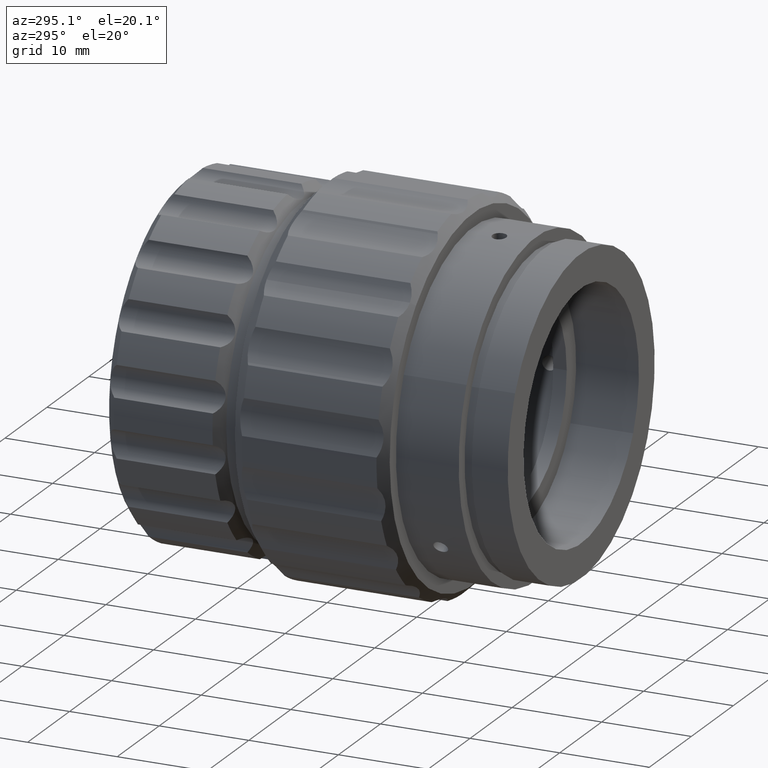
[diagram: clean part render]
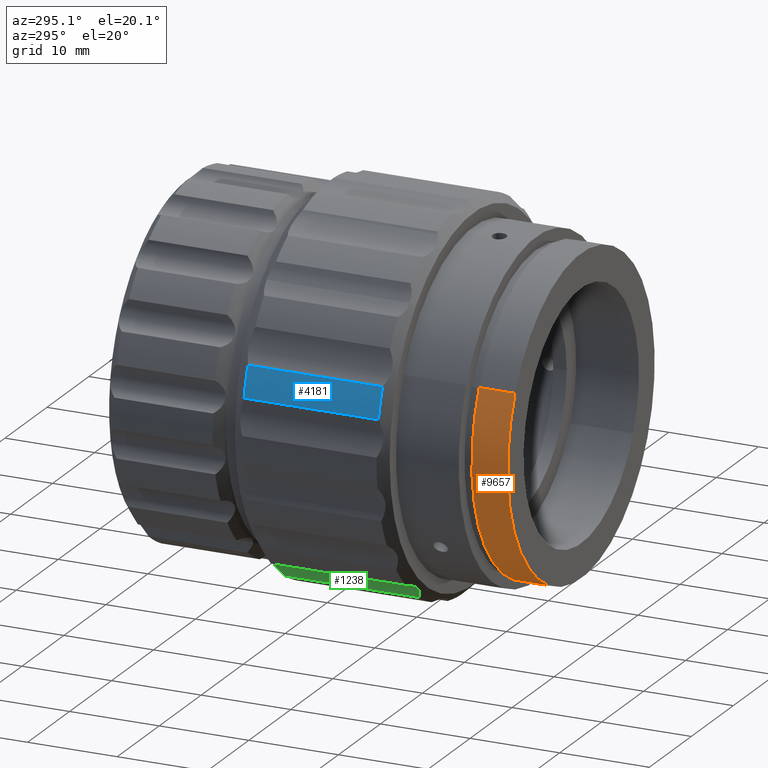
[diagram: same view with three faces highlighted in distinct colors, each labeled with its STEP entity id]
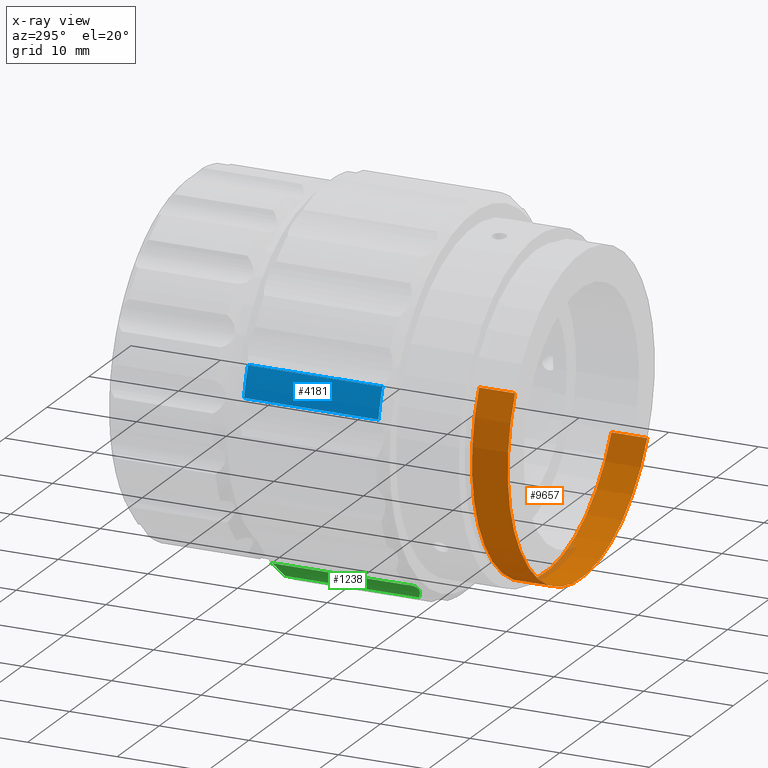
[diagram: x-ray of the same camera — body ghosted, the three highlighted faces saturated]
A machine part, auxiliary view with three faces highlighted in distinct colors.
The next image is the same camera in x-ray (body ghosted, the three faces saturated) — at least one of them is partly hidden behind the body in this view.
Their STEP definitions:

[orange] entity #9657 — the highlighted cylindrical surface (partial cylindrical patch) has radius 17.5 mm, axis along (0, -1, 0).
#172 = CARTESIAN_POINT ( 'NONE',  ( -9.777650990456313806, -35.54875568700542487, 52.53271739440664589 ) ) ;
#318 = LINE ( 'NONE', #7306, #7941 ) ;
#342 = CARTESIAN_POINT ( 'NONE',  ( -9.777650990456313806, -55.81082790531268500, 52.53271739440664589 ) ) ;
#374 = ORIENTED_EDGE ( 'NONE', *, *, #2232, .T. ) ;
#996 = CIRCLE ( 'NONE', #6678, 17.50000000000000355 ) ;
#1445 = CARTESIAN_POINT ( 'NONE',  ( 5.971701014312827738, -35.54875568700542487, 44.90330644533106863 ) ) ;
#1494 = DIRECTION ( 'NONE',  ( -0.8999629717010936281, 0.000000000000000000, 0.4359663399471758183 ) ) ;
#1684 = CARTESIAN_POINT ( 'NONE',  ( 21.72105301908196751, -31.54875568700542132, 37.27389549625549137 ) ) ;
#1715 = ORIENTED_EDGE ( 'NONE', *, *, #5090, .T. ) ;
#1865 = VERTEX_POINT ( 'NONE', #5417 ) ;
#1942 = DIRECTION ( 'NONE',  ( 0.000000000000000000, -1.000000000000000000, 0.000000000000000000 ) ) ;
#2232 = EDGE_CURVE ( 'NONE', #1865, #8802, #996, .T. ) ;
#2622 = CIRCLE ( 'NONE', #5376, 17.50000000000000355 ) ;
#2626 = EDGE_CURVE ( 'NONE', #3669, #3050, #2622, .T. ) ;
#3050 = VERTEX_POINT ( 'NONE', #3138 ) ;
#3138 = CARTESIAN_POINT ( 'NONE',  ( 21.72105301908196751, -35.54875568700542487, 37.27389549625549137 ) ) ;
#3482 = LINE ( 'NONE', #342, #9745 ) ;
#3634 = DIRECTION ( 'NONE',  ( 0.000000000000000000, -1.000000000000000000, 0.000000000000000000 ) ) ;
#3669 = VERTEX_POINT ( 'NONE', #172 ) ;
#4300 = EDGE_CURVE ( 'NONE', #1865, #3669, #3482, .T. ) ;
#4645 = DIRECTION ( 'NONE',  ( 0.000000000000000000, -1.000000000000000000, 0.000000000000000000 ) ) ;
#4917 = AXIS2_PLACEMENT_3D ( 'NONE', #8090, #1942, #9848 ) ;
#5090 = EDGE_CURVE ( 'NONE', #8802, #3050, #318, .T. ) ;
#5173 = EDGE_LOOP ( 'NONE', ( #374, #1715, #7123, #8512 ) ) ;
#5311 = CARTESIAN_POINT ( 'NONE',  ( 5.971701014312827738, -31.54875568700542132, 44.90330644533106863 ) ) ;
#5376 = AXIS2_PLACEMENT_3D ( 'NONE', #1445, #3634, #1494 ) ;
#5417 = CARTESIAN_POINT ( 'NONE',  ( -9.777650990456313806, -31.54875568700542132, 52.53271739440664589 ) ) ;
#6678 = AXIS2_PLACEMENT_3D ( 'NONE', #5311, #4645, #9132 ) ;
#7123 = ORIENTED_EDGE ( 'NONE', *, *, #2626, .F. ) ;
#7306 = CARTESIAN_POINT ( 'NONE',  ( 21.72105301908196751, -55.81082790531268500, 37.27389549625549137 ) ) ;
#7324 = CYLINDRICAL_SURFACE ( 'NONE', #4917, 17.50000000000000355 ) ;
#7425 = FACE_OUTER_BOUND ( 'NONE', #5173, .T. ) ;
#7941 = VECTOR ( 'NONE', #8121, 1000.000000000000000 ) ;
#8090 = CARTESIAN_POINT ( 'NONE',  ( 5.971701014312827738, -55.81082790531268500, 44.90330644533106863 ) ) ;
#8121 = DIRECTION ( 'NONE',  ( 0.000000000000000000, -1.000000000000000000, 0.000000000000000000 ) ) ;
#8512 = ORIENTED_EDGE ( 'NONE', *, *, #4300, .F. ) ;
#8802 = VERTEX_POINT ( 'NONE', #1684 ) ;
#9132 = DIRECTION ( 'NONE',  ( -0.8999629717010936281, 0.000000000000000000, 0.4359663399471758183 ) ) ;
#9657 = ADVANCED_FACE ( 'NONE', ( #7425 ), #7324, .T. ) ;
#9745 = VECTOR ( 'NONE', #9748, 1000.000000000000000 ) ;
#9748 = DIRECTION ( 'NONE',  ( 0.000000000000000000, -1.000000000000000000, 0.000000000000000000 ) ) ;
#9848 = DIRECTION ( 'NONE',  ( -0.8999629717010936281, 0.000000000000000000, 0.4359663399471758183 ) ) ;

[blue] entity #4181 — the highlighted cylindrical surface (partial cylindrical patch) has radius 21 mm, axis along (0, -1, -0).
#136 = DIRECTION ( 'NONE',  ( 0.000000000000000000, -1.000000000000000000, -0.000000000000000000 ) ) ;
#159 = VERTEX_POINT ( 'NONE', #5826 ) ;
#230 = AXIS2_PLACEMENT_3D ( 'NONE', #6622, #8190, #1894 ) ;
#239 = CARTESIAN_POINT ( 'NONE',  ( -14.57019156902013712, -14.54875568700542310, 49.26571966450354978 ) ) ;
#455 = AXIS2_PLACEMENT_3D ( 'NONE', #4094, #9590, #9495 ) ;
#629 = DIRECTION ( 'NONE',  ( 0.000000000000000000, -1.000000000000000000, -0.000000000000000000 ) ) ;
#948 = EDGE_LOOP ( 'NONE', ( #6785, #2840, #2096, #2147 ) ) ;
#1598 = CARTESIAN_POINT ( 'NONE',  ( -14.57019156902013712, -7.548755687005425763, 49.26571966450354978 ) ) ;
#1894 = DIRECTION ( 'NONE',  ( 0.6871969081691013947, 0.000000000000000000, -0.7264712034229763304 ) ) ;
#2063 = CARTESIAN_POINT ( 'NONE',  ( -13.60800585084655978, -14.54875568700542310, 52.49508351492620761 ) ) ;
#2096 = ORIENTED_EDGE ( 'NONE', *, *, #8678, .T. ) ;
#2147 = ORIENTED_EDGE ( 'NONE', *, *, #3355, .T. ) ;
#2202 = CIRCLE ( 'NONE', #9690, 21.00000000000000355 ) ;
#2293 = VERTEX_POINT ( 'NONE', #1598 ) ;
#2306 = VECTOR ( 'NONE', #6539, 1000.000000000000000 ) ;
#2628 = CARTESIAN_POINT ( 'NONE',  ( -13.60800585084655978, -7.548755687005425763, 52.49508351492620761 ) ) ;
#2840 = ORIENTED_EDGE ( 'NONE', *, *, #9275, .T. ) ;
#3355 = EDGE_CURVE ( 'NONE', #2293, #6087, #8757, .T. ) ;
#4094 = CARTESIAN_POINT ( 'NONE',  ( 5.971701014312827738, -23.54875568700542487, 44.90330644533106863 ) ) ;
#4181 = ADVANCED_FACE ( 'NONE', ( #8664 ), #8715, .T. ) ;
#4436 = DIRECTION ( 'NONE',  ( 0.6871969081691013947, 0.000000000000000000, -0.7264712034229764415 ) ) ;
#4526 = CARTESIAN_POINT ( 'NONE',  ( 5.971701014312827738, -22.54875568700542487, 44.90330644533106863 ) ) ;
#4719 = EDGE_CURVE ( 'NONE', #159, #6087, #2202, .T. ) ;
#4735 = VECTOR ( 'NONE', #136, 1000.000000000000000 ) ;
#5826 = CARTESIAN_POINT ( 'NONE',  ( -13.60800585084655268, -22.54875568700542487, 52.49508351492621472 ) ) ;
#6087 = VERTEX_POINT ( 'NONE', #7360 ) ;
#6539 = DIRECTION ( 'NONE',  ( -0.000000000000000000, 1.000000000000000000, 0.000000000000000000 ) ) ;
#6558 = VERTEX_POINT ( 'NONE', #2628 ) ;
#6622 = CARTESIAN_POINT ( 'NONE',  ( 5.971701014312827738, -7.548755687005425763, 44.90330644533106863 ) ) ;
#6785 = ORIENTED_EDGE ( 'NONE', *, *, #4719, .F. ) ;
#7341 = LINE ( 'NONE', #2063, #2306 ) ;
#7360 = CARTESIAN_POINT ( 'NONE',  ( -14.57019156902013002, -22.54875568700542487, 49.26571966450352136 ) ) ;
#8190 = DIRECTION ( 'NONE',  ( 0.000000000000000000, -1.000000000000000000, -0.000000000000000000 ) ) ;
#8664 = FACE_OUTER_BOUND ( 'NONE', #948, .T. ) ;
#8678 = EDGE_CURVE ( 'NONE', #6558, #2293, #9650, .T. ) ;
#8715 = CYLINDRICAL_SURFACE ( 'NONE', #455, 21.00000000000000355 ) ;
#8757 = LINE ( 'NONE', #239, #4735 ) ;
#9275 = EDGE_CURVE ( 'NONE', #159, #6558, #7341, .T. ) ;
#9495 = DIRECTION ( 'NONE',  ( 0.6871969081691013947, 0.000000000000000000, -0.7264712034229764415 ) ) ;
#9590 = DIRECTION ( 'NONE',  ( 0.000000000000000000, -1.000000000000000000, -0.000000000000000000 ) ) ;
#9650 = CIRCLE ( 'NONE', #230, 21.00000000000000711 ) ;
#9690 = AXIS2_PLACEMENT_3D ( 'NONE', #4526, #629, #4436 ) ;

[green] entity #1238 — the highlighted cylindrical surface (partial cylindrical patch) has radius 5 mm, axis along (0, -1, -0).
#111 = CARTESIAN_POINT ( 'NONE',  ( -6.834120966437180478, -7.105373035567768447, 28.82178846699994423 ) ) ;
#139 = CARTESIAN_POINT ( 'NONE',  ( -5.265687785752597883, -22.81818094281916487, 27.48201659369735950 ) ) ;
#484 = CARTESIAN_POINT ( 'NONE',  ( -4.904720319352334101, -14.54875568700542310, 26.93935757620449678 ) ) ;
#868 = CARTESIAN_POINT ( 'NONE',  ( -6.104398873115478352, -7.048935032238706988, 28.33659460243355355 ) ) ;
#890 = CYLINDRICAL_SURFACE ( 'NONE', #2864, 4.999999999999994671 ) ;
#935 = DIRECTION ( 'NONE',  ( 0.000000000000000000, -1.000000000000000000, -0.000000000000000000 ) ) ;
#990 = CARTESIAN_POINT ( 'NONE',  ( -5.596895506844827395, -22.95871898295860802, 27.86968503699698019 ) ) ;
#1016 = CARTESIAN_POINT ( 'NONE',  ( -6.534488052299716188, -7.060197840142571124, 28.64463877216469001 ) ) ;
#1083 = CARTESIAN_POINT ( 'NONE',  ( -4.904720319352344760, -22.54875568700542487, 26.93935757620451454 ) ) ;
#1238 = ADVANCED_FACE ( 'NONE', ( #4740 ), #890, .F. ) ;
#1273 = EDGE_CURVE ( 'NONE', #3833, #1859, #4192, .T. ) ;
#1303 = ORIENTED_EDGE ( 'NONE', *, *, #4513, .F. ) ;
#1401 = CARTESIAN_POINT ( 'NONE',  ( -8.077205946962013883, -22.54875568700542843, 29.29471223593977669 ) ) ;
#1651 = CARTESIAN_POINT ( 'NONE',  ( -5.072743880714935649, -22.69496540806593643, 27.21363929547027283 ) ) ;
#1774 = CARTESIAN_POINT ( 'NONE',  ( -7.453320009564722071, -7.279330431191702644, 29.10618463004719558 ) ) ;
#1859 = VERTEX_POINT ( 'NONE', #2362 ) ;
#2226 = ORIENTED_EDGE ( 'NONE', *, *, #1273, .F. ) ;
#2362 = CARTESIAN_POINT ( 'NONE',  ( -4.904720319352334101, -7.548755687005425763, 26.93935757620449678 ) ) ;
#2429 = B_SPLINE_CURVE_WITH_KNOTS ( 'NONE', 3,
 ( #6377, #5719, #5507, #7090, #4898, #7281, #7997, #4148, #6428, #6477, #990, #3176, #139, #1651, #8819, #8604 ),
 .UNSPECIFIED., .F., .F.,
 ( 4, 2, 2, 2, 2, 2, 2, 4 ),
 ( 4.574723492271551556E-07, 0.001050828036899227776, 0.001576013319174227219, 0.002101198601449226662, 0.002626383883724226105, 0.003151569165999225548, 0.003676754448274224991, 0.004201939730549224435 ),
 .UNSPECIFIED. ) ;
#2446 = DIRECTION ( 'NONE',  ( 0.6871969081691013947, 0.000000000000000000, -0.7264712034229764415 ) ) ;
#2687 = VERTEX_POINT ( 'NONE', #1401 ) ;
#2698 = VECTOR ( 'NONE', #7275, 1000.000000000000000 ) ;
#2783 = ORIENTED_EDGE ( 'NONE', *, *, #4174, .F. ) ;
#2822 = VERTEX_POINT ( 'NONE', #7310 ) ;
#2864 = AXIS2_PLACEMENT_3D ( 'NONE', #8705, #3211, #2446 ) ;
#3011 = EDGE_LOOP ( 'NONE', ( #2226, #2783, #1303, #3504 ) ) ;
#3090 = CARTESIAN_POINT ( 'NONE',  ( -5.970428865144741692, -7.060570779561622601, 28.22548961107674614 ) ) ;
#3176 = CARTESIAN_POINT ( 'NONE',  ( -5.371390369685864030, -22.87192481522069087, 27.61479335043339844 ) ) ;
#3211 = DIRECTION ( 'NONE',  ( 0.000000000000000000, -1.000000000000000000, -0.000000000000000000 ) ) ;
#3504 = ORIENTED_EDGE ( 'NONE', *, *, #3996, .F. ) ;
#3833 = VERTEX_POINT ( 'NONE', #1083 ) ;
#3962 = CARTESIAN_POINT ( 'NONE',  ( -8.077205946962029870, -7.548755687005425763, 29.29471223593978380 ) ) ;
#3996 = EDGE_CURVE ( 'NONE', #1859, #2822, #9230, .T. ) ;
#4148 = CARTESIAN_POINT ( 'NONE',  ( -6.110752126150302388, -23.04893092694688050, 28.34166649357388934 ) ) ;
#4174 = EDGE_CURVE ( 'NONE', #2687, #3833, #2429, .T. ) ;
#4192 = LINE ( 'NONE', #484, #2698 ) ;
#4513 = EDGE_CURVE ( 'NONE', #2822, #2687, #5653, .T. ) ;
#4740 = FACE_OUTER_BOUND ( 'NONE', #3011, .T. ) ;
#4898 = CARTESIAN_POINT ( 'NONE',  ( -6.836010955282776358, -22.99173279646781864, 28.82278449330729231 ) ) ;
#5507 = CARTESIAN_POINT ( 'NONE',  ( -7.456499042781209674, -22.82639049002024834, 29.11695029621450814 ) ) ;
#5530 = CARTESIAN_POINT ( 'NONE',  ( -5.715567489245063193, -7.105778577543022223, 27.99093147694224726 ) ) ;
#5587 = CARTESIAN_POINT ( 'NONE',  ( -5.254462783012151306, -7.271120883990594308, 27.48208824350255952 ) ) ;
#5653 = LINE ( 'NONE', #8652, #6352 ) ;
#5719 = CARTESIAN_POINT ( 'NONE',  ( -7.766781058532137294, -22.70181177851244669, 29.22123012480399140 ) ) ;
#6196 = CARTESIAN_POINT ( 'NONE',  ( -6.986406165228602028, -7.138792391052248831, 28.90130213101733148 ) ) ;
#6352 = VECTOR ( 'NONE', #935, 1000.000000000000000 ) ;
#6377 = CARTESIAN_POINT ( 'NONE',  ( -8.077205946962013883, -22.54875568700542843, 29.29471223593977669 ) ) ;
#6428 = CARTESIAN_POINT ( 'NONE',  ( -5.973330978976712835, -23.03731353386828218, 28.22801783746542270 ) ) ;
#6477 = CARTESIAN_POINT ( 'NONE',  ( -5.717067729639945028, -22.99213833844307686, 27.99245246510759699 ) ) ;
#7003 = CARTESIAN_POINT ( 'NONE',  ( -7.766042004628253892, -7.402545965944920425, 29.21322984712081450 ) ) ;
#7090 = CARTESIAN_POINT ( 'NONE',  ( -6.990368549541521759, -22.95779508110709699, 28.90331564014065791 ) ) ;
#7156 = CARTESIAN_POINT ( 'NONE',  ( -5.064871932480149219, -7.395699595498392398, 27.21524649012864572 ) ) ;
#7275 = DIRECTION ( 'NONE',  ( -0.000000000000000000, 1.000000000000000000, 0.000000000000000000 ) ) ;
#7281 = CARTESIAN_POINT ( 'NONE',  ( -6.537747792358719501, -23.03694059444921649, 28.64668530291546489 ) ) ;
#7310 = CARTESIAN_POINT ( 'NONE',  ( -8.077205946962029870, -7.548755687005425763, 29.29471223593978380 ) ) ;
#7862 = CARTESIAN_POINT ( 'NONE',  ( -7.295639914124564029, -7.225586558790166869, 29.04341767312324052 ) ) ;
#7997 = CARTESIAN_POINT ( 'NONE',  ( -6.392634279660578400, -23.04857634177214365, 28.55058977454666191 ) ) ;
#8604 = CARTESIAN_POINT ( 'NONE',  ( -4.904720319352344760, -22.54875568700542487, 26.93935757620451454 ) ) ;
#8631 = CARTESIAN_POINT ( 'NONE',  ( -4.904720319352334101, -7.548755687005425763, 26.93935757620449678 ) ) ;
#8652 = CARTESIAN_POINT ( 'NONE',  ( -8.077205946962029870, -14.54875568700542310, 29.29471223593978380 ) ) ;
#8705 = CARTESIAN_POINT ( 'NONE',  ( -9.228950543750238822, -5.548755687005420434, 24.42917173320330448 ) ) ;
#8730 = CARTESIAN_POINT ( 'NONE',  ( -5.593821713290539677, -7.139716292903752759, 27.86647466293480235 ) ) ;
#8819 = CARTESIAN_POINT ( 'NONE',  ( -4.984876262414421610, -22.62536031880735621, 27.07744008217535381 ) ) ;
#9230 = B_SPLINE_CURVE_WITH_KNOTS ( 'NONE', 3,
 ( #8631, #7156, #5587, #8730, #5530, #3090, #868, #9357, #1016, #111, #6196, #7862, #1774, #7003, #9303, #3962 ),
 .UNSPECIFIED., .F., .F.,
 ( 4, 2, 2, 2, 2, 2, 2, 4 ),
 ( 4.574723477067426620E-07, 0.001050828036897714013, 0.001576013319172717142, 0.002101198601447720488, 0.002626383883722723835, 0.003151569165997726747, 0.003676754448272730093, 0.004201939730547733440 ),
 .UNSPECIFIED. ) ;
#9303 = CARTESIAN_POINT ( 'NONE',  ( -7.921838172663193234, -7.472151055203502423, 29.25793441146929297 ) ) ;
#9357 = CARTESIAN_POINT ( 'NONE',  ( -6.385941177374888866, -7.048580447063971910, 28.54597563479395816 ) ) ;